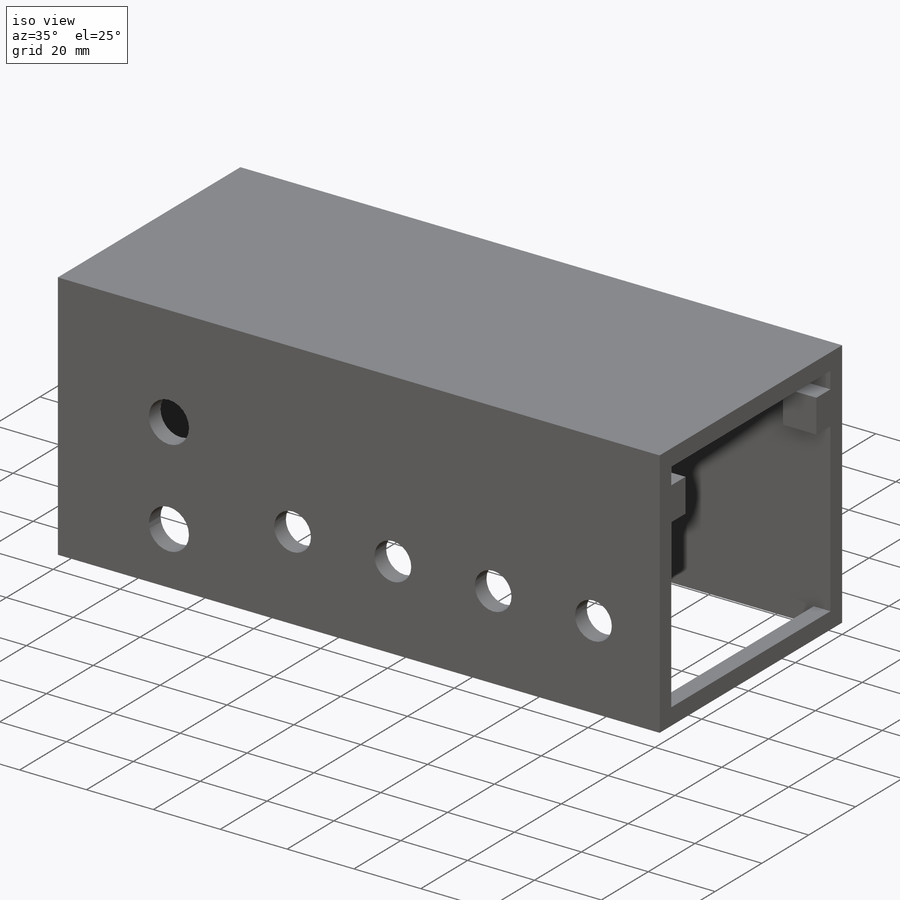
[diagram: iso view]
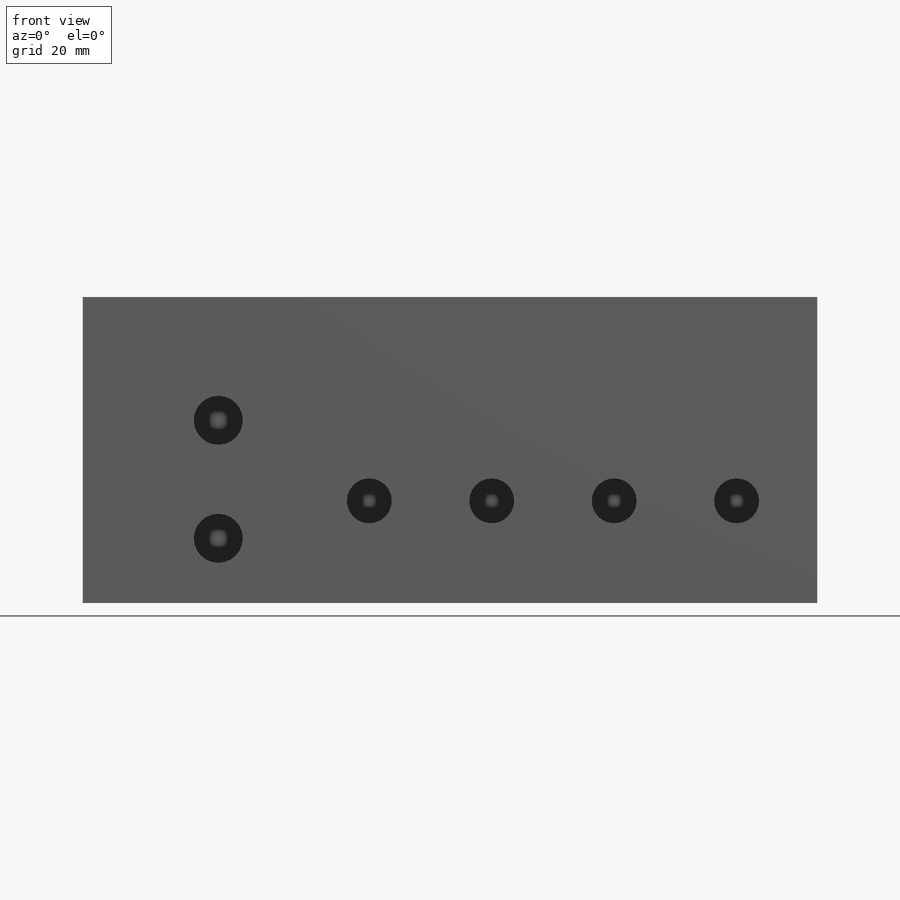
[diagram: front view]
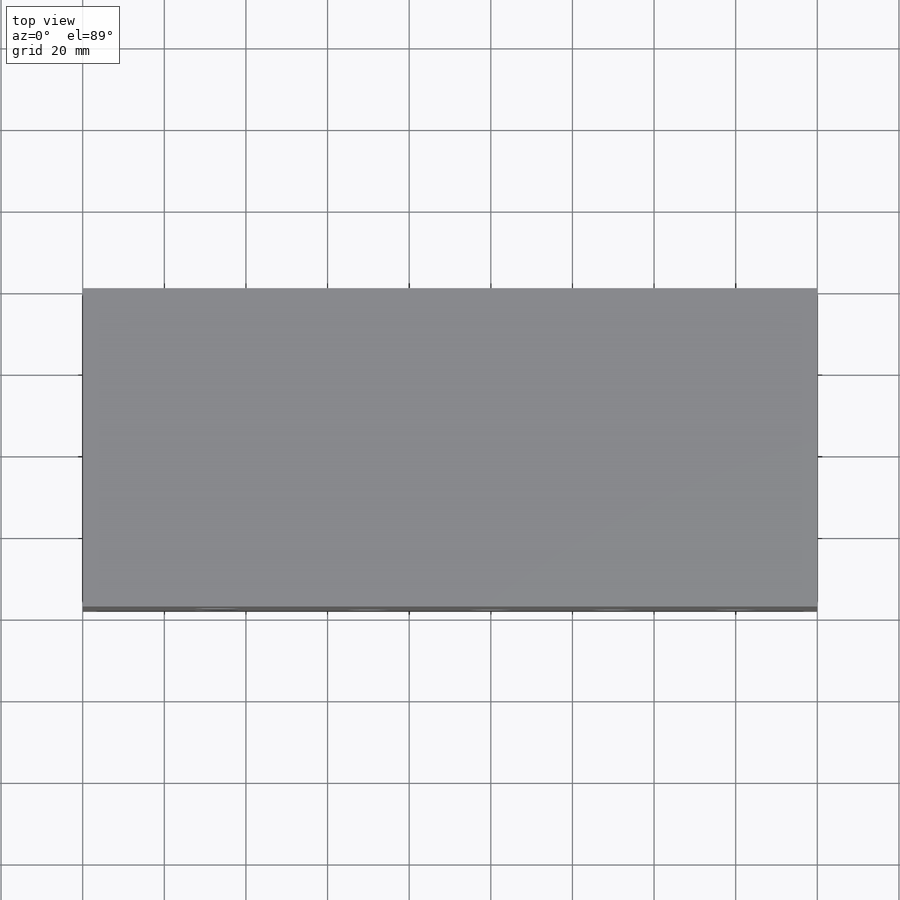
[diagram: top view]
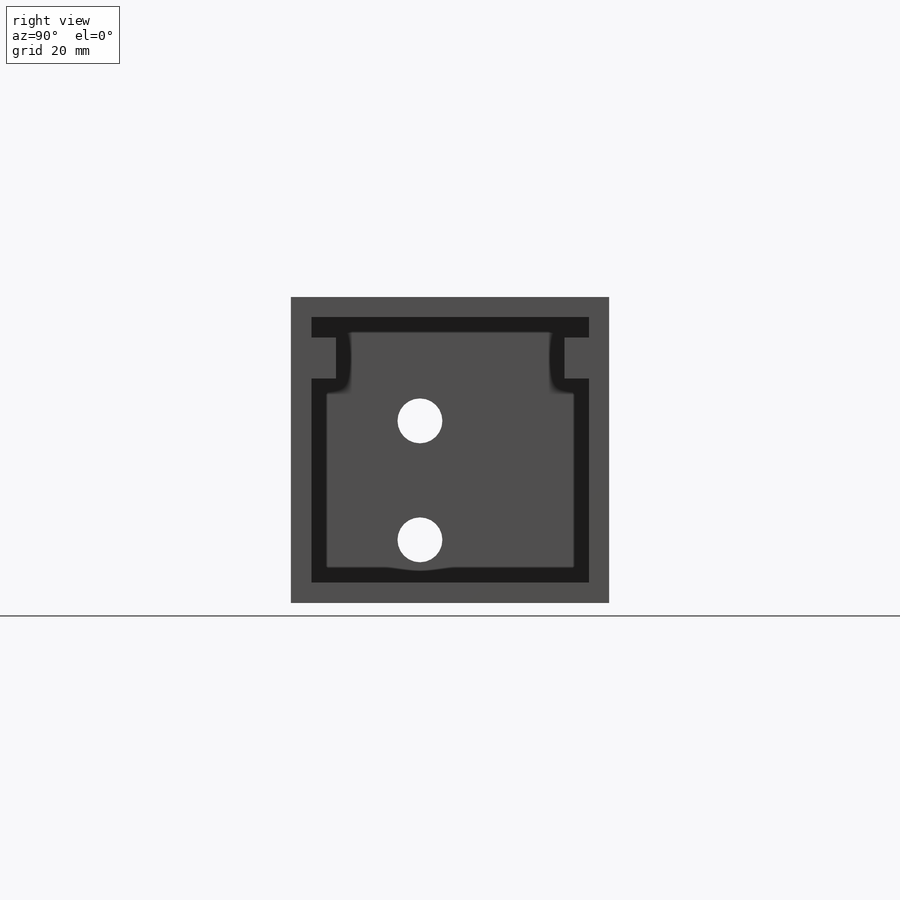
[diagram: right view]
SOLIDWORKS PART (.sldprt)
format: sldprt  version: not decoded by parser v0  size: 263,168 bytes
history: native  units: mm
features: sketch x6, cut_extrude x4, extrude x2, material x1, plane x1, mirror x1 (+11 scaffold rows collapsed)
feature tree (26):
  scaffold x11  (default folders/planes/origin — collapsed)
  material  "Material <not specified>"
  sketch  "Sketch1"  dims[D1=180.0mm D2=78.0mm]
  extrude  "Boss-Extrude1"  Depth=75mm
  sketch  "Sketch2"  dims[c1.D1=~5.074309mm c1.D2=12.0mm c1.D3=11.0mm c1.D4=11.0mm c2.D1=30.0mm c2.D4=25.0mm]
  sketch  "Sketch6"  dims[c1.D1=~4.661277mm c1.D2=11.0mm c2.D1=~29.149774mm c2.D2=~30.363535mm c2.D3=~36.417014mm]
  sketch  "Sketch7"  dims[D1=170.0mm D2=68.0mm D3=5.0mm D4=5.0mm D5=68.0mm]
  cut_extrude  "Cut-Extrude1"  Depth=70mm
  sketch  "Sketch8"  dims[D1=5.0mm D2=5.0mm D3=5.0mm D4=5.0mm]
  cut_extrude  "Cut-Extrude2"  Depth=5mm
  cut_extrude  "Cut-Extrude3"  Depth=5mm
  cut_extrude  "Cut-Extrude5"  Depth=5mm
  sketch  "Sketch9"  dims[D1=10.0mm D2=10.0mm D3=10.0mm D4=10.0mm D5=10.0mm D6=5.0mm]
  extrude  "Boss-Extrude2"  Depth=6mm
  plane  "Plane1"
  mirror  "Mirror1"
decode coverage: 12 of 13 modeling features carry decoded parameters
note: ~ marks probable driven/reference dimensions
note: suppression state not decoded; provenance and decode notes live in map.json
